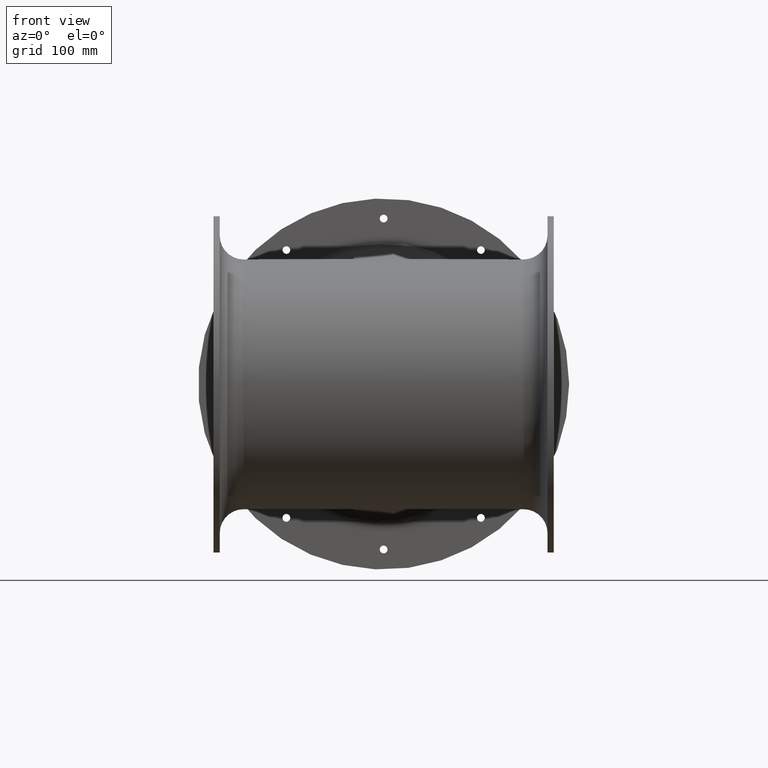
[diagram: clean part render]
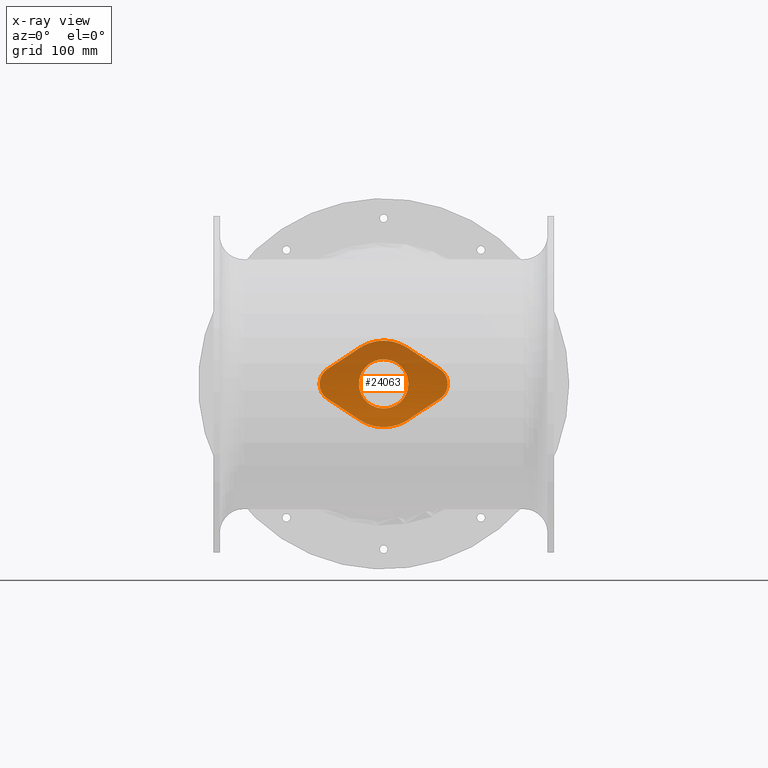
[diagram: x-ray — body ghosted, one internal face saturated and labeled with its STEP entity id]
A machine part, front view, then the same camera in x-ray: the body is ghosted and one INTERNAL B-rep face — a face not visible from any outside direction — is saturated and labeled: STEP entity #24063.
In plain terms, the highlighted cylindrical surface (partial cylindrical patch) has radius 191.2 mm, axis along (1, 0, 0).
Its self-contained STEP definition (entity closure, byte-faithful):
#485=ELLIPSE('',#25851,347.215496329722,191.199999960248);
#486=ELLIPSE('',#25852,347.215496353252,191.199999985337);
#487=ELLIPSE('',#25853,347.21549625925,191.199999888041);
#488=ELLIPSE('',#25854,347.215496300063,191.199999929978);
#4695=FACE_BOUND('',#7168,.T.);
#5639=FACE_OUTER_BOUND('',#7167,.T.);
#7167=EDGE_LOOP('',(#18792,#18793,#18794,#18795,#18796,#18797,#18798,#18799));
#7168=EDGE_LOOP('',(#18800));
#8603=B_SPLINE_CURVE_WITH_KNOTS('',3,(#63079,#63080,#63081,#63082,#63083,
#63084,#63085,#63086,#63087,#63088,#63089,#63090,#63091,#63092,#63093,#63094,
#63095,#63096,#63097,#63098,#63099,#63100,#63101,#63102,#63103,#63104),
 .UNSPECIFIED.,.F.,.F.,(4,2,2,2,2,2,2,2,2,2,2,2,4),(-15.725844214039,-15.7013195879185,
-15.1598895513449,-14.6184689818161,-14.0770484122872,-13.5356278427584,
-12.9942072732295,-12.4527867037007,-11.9113661341718,-11.369945564643,
-10.8285249951141,-10.2870949585405,-10.26257033242),.UNSPECIFIED.);
#8604=B_SPLINE_CURVE_WITH_KNOTS('',3,(#63108,#63109,#63110,#63111,#63112,
#63113,#63114,#63115,#63116,#63117,#63118,#63119,#63120,#63121,#63122),
 .UNSPECIFIED.,.F.,.F.,(4,2,2,3,2,2,4),(-3.92995720711739,-2.66477055484875,
-1.33238527742438,0.,1.33238527742438,2.66477055484876,3.92995720711741),
 .UNSPECIFIED.);
#8605=B_SPLINE_CURVE_WITH_KNOTS('',3,(#63126,#63127,#63128,#63129,#63130,
#63131,#63132,#63133,#63134,#63135,#63136,#63137,#63138,#63139,#63140,#63141,
#63142,#63143,#63144,#63145,#63146,#63147,#63148,#63149,#63150,#63151),
 .UNSPECIFIED.,.F.,.F.,(4,2,2,2,2,2,2,2,2,2,2,2,4),(1.59976548360048,1.62429010972083,
2.16572014629444,2.70714071582329,3.24856128535215,3.789981854881,4.33140242440986,
4.87282299393871,5.41424356346756,5.95566413299642,6.49708470252527,7.03851473909888,
7.06303936521923),.UNSPECIFIED.);
#8606=B_SPLINE_CURVE_WITH_KNOTS('',3,(#63155,#63156,#63157,#63158,#63159,
#63160,#63161,#63162,#63163,#63164,#63165,#63166,#63167,#63168),
 .UNSPECIFIED.,.F.,.F.,(4,2,2,2,2,2,4),(-25.2407567184165,-23.9755700661479,
-22.6431847887235,-21.3107995112991,-19.9784142338747,-18.6460289564503,
-17.3808423041817),.UNSPECIFIED.);
#8607=B_SPLINE_CURVE_WITH_KNOTS('',3,(#63171,#63172,#63173,#63174,#63175,
#63176,#63177,#63178,#63179,#63180,#63181,#63182,#63183,#63184,#63185,#63186,
#63187,#63188,#63189,#63190,#63191,#63192,#63193,#63194,#63195,#63196,#63197,
#63198,#63199,#63200,#63201,#63202,#63203,#63204,#63205,#63206,#63207,#63208,
#63209,#63210,#63211,#63212,#63213,#63214,#63215,#63216,#63217,#63218,#63219,
#63220,#63221,#63222,#63223,#63224,#63225,#63226,#63227,#63228,#63229,#63230,
#63231,#63232,#63233,#63234,#63235,#63236,#63237,#63238,#63239,#63240,#63241,
#63242,#63243),.UNSPECIFIED.,.T.,.F.,(4,3,3,3,3,3,3,3,3,3,3,3,3,3,3,3,3,
3,3,3,3,3,3,3,4),(-23.5763878531565,-21.8925300560688,-21.0505096692969,
-20.629499475911,-20.208489282525,-19.0857954334959,-17.9631015844667,-16.8404077354375,
-15.7177138864084,-15.4370404241511,-14.5950200373792,-14.0336731128646,
-13.47232618835,-12.9109792638354,-12.3496323393209,-11.2269384902917,-10.1042446412625,
-8.98155079223335,-8.70087732997605,-7.85885694320418,-6.73616309417501,
-5.05212232063126,-3.36808154708751,-1.68404077354375,0.000182976456013506),
 .UNSPECIFIED.);
#10376=VERTEX_POINT('',#63077);
#10377=VERTEX_POINT('',#63078);
#10378=VERTEX_POINT('',#63105);
#10379=VERTEX_POINT('',#63107);
#10380=VERTEX_POINT('',#63123);
#10381=VERTEX_POINT('',#63125);
#10382=VERTEX_POINT('',#63152);
#10383=VERTEX_POINT('',#63154);
#10384=VERTEX_POINT('',#63170);
#13343=EDGE_CURVE('',#10376,#10377,#8603,.T.);
#13344=EDGE_CURVE('',#10378,#10376,#485,.T.);
#13345=EDGE_CURVE('',#10379,#10378,#8604,.T.);
#13346=EDGE_CURVE('',#10380,#10379,#486,.T.);
#13347=EDGE_CURVE('',#10381,#10380,#8605,.F.);
#13348=EDGE_CURVE('',#10382,#10381,#487,.T.);
#13349=EDGE_CURVE('',#10383,#10382,#8606,.T.);
#13350=EDGE_CURVE('',#10377,#10383,#488,.T.);
#13351=EDGE_CURVE('',#10384,#10384,#8607,.T.);
#18792=ORIENTED_EDGE('',*,*,#13343,.F.);
#18793=ORIENTED_EDGE('',*,*,#13344,.F.);
#18794=ORIENTED_EDGE('',*,*,#13345,.F.);
#18795=ORIENTED_EDGE('',*,*,#13346,.F.);
#18796=ORIENTED_EDGE('',*,*,#13347,.F.);
#18797=ORIENTED_EDGE('',*,*,#13348,.F.);
#18798=ORIENTED_EDGE('',*,*,#13349,.F.);
#18799=ORIENTED_EDGE('',*,*,#13350,.F.);
#18800=ORIENTED_EDGE('',*,*,#13351,.F.);
#21759=CYLINDRICAL_SURFACE('',#25850,191.199999999999);
#24063=ADVANCED_FACE('',(#5639,#4695),#21759,.T.);
#25850=AXIS2_PLACEMENT_3D('',#63076,#29205,#29206);
#25851=AXIS2_PLACEMENT_3D('',#63106,#29207,#29208);
#25852=AXIS2_PLACEMENT_3D('',#63124,#29209,#29210);
#25853=AXIS2_PLACEMENT_3D('',#63153,#29211,#29212);
#25854=AXIS2_PLACEMENT_3D('',#63169,#29213,#29214);
#29205=DIRECTION('center_axis',(1.,0.,0.));
#29206=DIRECTION('ref_axis',(0.,0.930572058664082,-0.366108786610882));
#29207=DIRECTION('center_axis',(0.550666666666718,-4.4379757284214E-13,
-0.834725237561538));
#29208=DIRECTION('ref_axis',(0.834725237561538,3.39504704167079E-11,0.550666666666718));
#29209=DIRECTION('center_axis',(-0.550666666666669,2.67347935446907E-14,
-0.83472523756157));
#29210=DIRECTION('ref_axis',(0.83472523756157,-1.62898484917883E-11,-0.550666666666669));
#29211=DIRECTION('center_axis',(-0.550666666666684,-1.14959612242236E-13,
0.83472523756156));
#29212=DIRECTION('ref_axis',(0.83472523756156,-1.00790316491045E-10,0.550666666666684));
#29213=DIRECTION('center_axis',(0.55066666666672,-4.59838448968886E-13,
0.834725237561536));
#29214=DIRECTION('ref_axis',(0.834725237561536,6.26675437728595E-11,-0.55066666666672));
#63076=CARTESIAN_POINT('Origin',(-619.549949718851,751.291495690655,286.088403940124));
#63077=CARTESIAN_POINT('',(-528.745816385518,940.984723377932,262.131789622107));
#63078=CARTESIAN_POINT('',(-528.745816385518,940.984723377932,310.045018258141));
#63079=CARTESIAN_POINT('Ctrl Pts',(-528.745816385518,940.984723377933,262.131789622107));
#63080=CARTESIAN_POINT('Ctrl Pts',(-528.674372853884,940.99067563629,262.178920785332));
#63081=CARTESIAN_POINT('Ctrl Pts',(-528.603184713787,940.996646699136,262.226342154422));
#63082=CARTESIAN_POINT('Ctrl Pts',(-526.966369835934,941.134846274242,263.327274724714));
#63083=CARTESIAN_POINT('Ctrl Pts',(-525.528528224044,941.275609660289,264.521896194823));
#63084=CARTESIAN_POINT('Ctrl Pts',(-522.983464224296,941.547277305078,267.066960194571));
#63085=CARTESIAN_POINT('Ctrl Pts',(-521.788845173319,941.687729675548,268.504791525917));
#63086=CARTESIAN_POINT('Ctrl Pts',(-519.682383828381,941.951019105515,271.636571102253));
#63087=CARTESIAN_POINT('Ctrl Pts',(-518.770403785522,942.073592732812,273.330448835527));
#63088=CARTESIAN_POINT('Ctrl Pts',(-517.3050804437,942.27711416174,276.865199116299));
#63089=CARTESIAN_POINT('Ctrl Pts',(-516.75057145707,942.358044144797,278.708938516081));
#63090=CARTESIAN_POINT('Ctrl Pts',(-516.022923539311,942.465269334124,282.418156122966));
#63091=CARTESIAN_POINT('Ctrl Pts',(-515.849949718851,942.491495690654,284.283668708361));
#63092=CARTESIAN_POINT('Ctrl Pts',(-515.849949718851,942.491495690654,287.893139171887));
#63093=CARTESIAN_POINT('Ctrl Pts',(-516.022923539311,942.465269334124,289.758651757282));
#63094=CARTESIAN_POINT('Ctrl Pts',(-516.750571457069,942.358044144797,293.467869364167));
#63095=CARTESIAN_POINT('Ctrl Pts',(-517.3050804437,942.27711416174,295.311608763949));
#63096=CARTESIAN_POINT('Ctrl Pts',(-518.770403785522,942.073592732812,298.846359044721));
#63097=CARTESIAN_POINT('Ctrl Pts',(-519.682383828381,941.951019105515,300.540236777995));
#63098=CARTESIAN_POINT('Ctrl Pts',(-521.788845173319,941.687729675548,303.672016354331));
#63099=CARTESIAN_POINT('Ctrl Pts',(-522.983464224296,941.547277305078,305.109847685677));
#63100=CARTESIAN_POINT('Ctrl Pts',(-525.528528224044,941.275609660289,307.654911685425));
#63101=CARTESIAN_POINT('Ctrl Pts',(-526.966369835934,941.134846274241,308.849533155534));
#63102=CARTESIAN_POINT('Ctrl Pts',(-528.603184713787,940.996646699136,309.950465725827));
#63103=CARTESIAN_POINT('Ctrl Pts',(-528.674372853883,940.99067563629,309.997887094916));
#63104=CARTESIAN_POINT('Ctrl Pts',(-528.745816385518,940.984723377933,310.045018258141));
#63105=CARTESIAN_POINT('',(-581.003283052184,933.344470154437,227.657637310814));
#63106=CARTESIAN_POINT('Origin',(-492.431305663779,751.291495730399,286.088403931834));
#63107=CARTESIAN_POINT('',(-658.096616385518,933.344470154437,227.657637310814));
#63108=CARTESIAN_POINT('Ctrl Pts',(-658.096616385518,933.344470154438,227.657637310814));
#63109=CARTESIAN_POINT('Ctrl Pts',(-654.457465412631,932.573940917469,225.256896269857));
#63110=CARTESIAN_POINT('Ctrl Pts',(-650.53958882099,931.850251415593,223.16587950409));
#63111=CARTESIAN_POINT('Ctrl Pts',(-642.147800208941,930.595676390174,219.672472260778));
#63112=CARTESIAN_POINT('Ctrl Pts',(-637.64743115765,930.077609117541,218.310179651667));
#63113=CARTESIAN_POINT('Ctrl Pts',(-628.569231234435,929.38782626056,216.51787080109));
#63114=CARTESIAN_POINT('Ctrl Pts',(-623.991233976932,929.216873307227,216.088403940124));
#63115=CARTESIAN_POINT('Ctrl Pts',(-619.549949718851,929.216873307227,216.088403940124));
#63116=CARTESIAN_POINT('Ctrl Pts',(-615.10866546077,929.216873307227,216.088403940124));
#63117=CARTESIAN_POINT('Ctrl Pts',(-610.530668203267,929.38782626056,216.51787080109));
#63118=CARTESIAN_POINT('Ctrl Pts',(-601.452468280052,930.077609117541,218.310179651667));
#63119=CARTESIAN_POINT('Ctrl Pts',(-596.952099228762,930.595676390174,219.672472260778));
#63120=CARTESIAN_POINT('Ctrl Pts',(-588.560310616712,931.850251415593,223.16587950409));
#63121=CARTESIAN_POINT('Ctrl Pts',(-584.642434025071,932.573940917469,225.256896269858));
#63122=CARTESIAN_POINT('Ctrl Pts',(-581.003283052184,933.344470154438,227.657637310814));
#63123=CARTESIAN_POINT('',(-710.354083052184,940.984723377932,262.131789622107));
#63124=CARTESIAN_POINT('Origin',(-746.668593780466,751.291495705308,286.08840393604));
#63125=CARTESIAN_POINT('',(-710.354083052184,940.984723377932,310.045018258141));
#63126=CARTESIAN_POINT('Ctrl Pts',(-710.354083052184,940.984723377933,262.131789622107));
#63127=CARTESIAN_POINT('Ctrl Pts',(-710.425526583818,940.99067563629,262.178920785333));
#63128=CARTESIAN_POINT('Ctrl Pts',(-710.496714723915,940.996646699136,262.226342154422));
#63129=CARTESIAN_POINT('Ctrl Pts',(-712.133529601767,941.134846274242,263.327274724714));
#63130=CARTESIAN_POINT('Ctrl Pts',(-713.571371213658,941.275609660289,264.521896194823));
#63131=CARTESIAN_POINT('Ctrl Pts',(-716.116435213405,941.547277305078,267.066960194571));
#63132=CARTESIAN_POINT('Ctrl Pts',(-717.311054264382,941.687729675548,268.504791525917));
#63133=CARTESIAN_POINT('Ctrl Pts',(-719.41751560932,941.951019105515,271.636571102253));
#63134=CARTESIAN_POINT('Ctrl Pts',(-720.329495652179,942.073592732812,273.330448835527));
#63135=CARTESIAN_POINT('Ctrl Pts',(-721.794818994001,942.27711416174,276.865199116299));
#63136=CARTESIAN_POINT('Ctrl Pts',(-722.349327980632,942.358044144797,278.708938516081));
#63137=CARTESIAN_POINT('Ctrl Pts',(-723.07697589839,942.465269334124,282.418156122966));
#63138=CARTESIAN_POINT('Ctrl Pts',(-723.249949718851,942.491495690654,284.283668708361));
#63139=CARTESIAN_POINT('Ctrl Pts',(-723.249949718851,942.491495690654,287.893139171887));
#63140=CARTESIAN_POINT('Ctrl Pts',(-723.07697589839,942.465269334124,289.758651757282));
#63141=CARTESIAN_POINT('Ctrl Pts',(-722.349327980632,942.358044144797,293.467869364167));
#63142=CARTESIAN_POINT('Ctrl Pts',(-721.794818994001,942.27711416174,295.311608763949));
#63143=CARTESIAN_POINT('Ctrl Pts',(-720.329495652179,942.073592732812,298.846359044721));
#63144=CARTESIAN_POINT('Ctrl Pts',(-719.41751560932,941.951019105515,300.540236777995));
#63145=CARTESIAN_POINT('Ctrl Pts',(-717.311054264382,941.687729675548,303.672016354331));
#63146=CARTESIAN_POINT('Ctrl Pts',(-716.116435213405,941.547277305078,305.109847685677));
#63147=CARTESIAN_POINT('Ctrl Pts',(-713.571371213658,941.275609660289,307.654911685425));
#63148=CARTESIAN_POINT('Ctrl Pts',(-712.133529601767,941.134846274241,308.849533155534));
#63149=CARTESIAN_POINT('Ctrl Pts',(-710.496714723915,940.996646699136,309.950465725826));
#63150=CARTESIAN_POINT('Ctrl Pts',(-710.425526583818,940.99067563629,309.997887094916));
#63151=CARTESIAN_POINT('Ctrl Pts',(-710.354083052184,940.984723377933,310.045018258141));
#63152=CARTESIAN_POINT('',(-658.096616385518,933.344470154437,344.519170569434));
#63153=CARTESIAN_POINT('Origin',(-746.668593748864,751.291495802587,286.088403965022));
#63154=CARTESIAN_POINT('',(-581.003283052184,933.344470154437,344.519170569434));
#63155=CARTESIAN_POINT('Ctrl Pts',(-581.003283052184,933.344470154438,344.519170569434));
#63156=CARTESIAN_POINT('Ctrl Pts',(-584.642434025071,932.573940917469,346.91991161039));
#63157=CARTESIAN_POINT('Ctrl Pts',(-588.560310616712,931.850251415593,349.010928376157));
#63158=CARTESIAN_POINT('Ctrl Pts',(-596.952099228761,930.595676390174,352.50433561947));
#63159=CARTESIAN_POINT('Ctrl Pts',(-601.452468280052,930.077609117541,353.866628228581));
#63160=CARTESIAN_POINT('Ctrl Pts',(-610.530668203267,929.387826260561,355.658937079157));
#63161=CARTESIAN_POINT('Ctrl Pts',(-615.10866546077,929.216873307227,356.088403940124));
#63162=CARTESIAN_POINT('Ctrl Pts',(-623.991233976932,929.216873307227,356.088403940124));
#63163=CARTESIAN_POINT('Ctrl Pts',(-628.569231234435,929.387826260561,355.658937079157));
#63164=CARTESIAN_POINT('Ctrl Pts',(-637.64743115765,930.077609117541,353.866628228581));
#63165=CARTESIAN_POINT('Ctrl Pts',(-642.147800208941,930.595676390174,352.50433561947));
#63166=CARTESIAN_POINT('Ctrl Pts',(-650.53958882099,931.850251415593,349.010928376157));
#63167=CARTESIAN_POINT('Ctrl Pts',(-654.457465412631,932.573940917469,346.91991161039));
#63168=CARTESIAN_POINT('Ctrl Pts',(-658.096616385518,933.344470154438,344.519170569434));
#63169=CARTESIAN_POINT('Origin',(-492.431305674578,751.291495760659,286.088403955535));
#63170=CARTESIAN_POINT('',(-619.549949418446,938.304477786643,325.882681513228));
#63171=CARTESIAN_POINT('Ctrl Pts',(-619.549949322649,938.304477786646,325.882681513213));
#63172=CARTESIAN_POINT('Ctrl Pts',(-613.57021557744,938.304679238055,325.881734793461));
#63173=CARTESIAN_POINT('Ctrl Pts',(-607.599485197599,938.605414479758,324.531805851127));
#63174=CARTESIAN_POINT('Ctrl Pts',(-602.192584183596,939.100078930596,321.940545597293));
#63175=CARTESIAN_POINT('Ctrl Pts',(-599.488839906067,939.347438032378,320.644774680691));
#63176=CARTESIAN_POINT('Ctrl Pts',(-596.92608360593,939.640361245285,319.038047116504));
#63177=CARTESIAN_POINT('Ctrl Pts',(-594.589666070322,939.946093300627,317.183143054951));
#63178=CARTESIAN_POINT('Ctrl Pts',(-593.421457302518,940.098959328298,316.255691024175));
#63179=CARTESIAN_POINT('Ctrl Pts',(-592.309833225847,940.255050229473,315.266189506514));
#63180=CARTESIAN_POINT('Ctrl Pts',(-591.254771456942,940.411298571729,314.215617776962));
#63181=CARTESIAN_POINT('Ctrl Pts',(-590.199709688037,940.567546913986,313.16504604741));
#63182=CARTESIAN_POINT('Ctrl Pts',(-589.201210226898,940.723898802255,312.053400672597));
#63183=CARTESIAN_POINT('Ctrl Pts',(-588.26914576847,940.876081973918,310.89011040971));
#63184=CARTESIAN_POINT('Ctrl Pts',(-585.783640545995,941.28190376502,307.788003042011));
#63185=CARTESIAN_POINT('Ctrl Pts',(-583.770562009463,941.656418384477,304.318432035161));
#63186=CARTESIAN_POINT('Ctrl Pts',(-582.314929473222,941.937862199031,300.628106040016));
#63187=CARTESIAN_POINT('Ctrl Pts',(-580.859296936981,942.219306013585,296.93778004487));
#63188=CARTESIAN_POINT('Ctrl Pts',(-579.96111040103,942.406544290326,293.026597866441));
#63189=CARTESIAN_POINT('Ctrl Pts',(-579.662552402384,942.468250260683,289.069764715139));
#63190=CARTESIAN_POINT('Ctrl Pts',(-579.363994403737,942.529956231041,285.112931563837));
#63191=CARTESIAN_POINT('Ctrl Pts',(-579.665064942393,942.46594593263,281.110429428133));
#63192=CARTESIAN_POINT('Ctrl Pts',(-580.551531717593,942.286651828204,277.240221528291));
#63193=CARTESIAN_POINT('Ctrl Pts',(-581.437998492792,942.107357723777,273.37001362845));
#63194=CARTESIAN_POINT('Ctrl Pts',(-582.909861504534,941.813556713513,269.632049431243));
#63195=CARTESIAN_POINT('Ctrl Pts',(-584.913583383149,941.452503521582,266.182849420705));
#63196=CARTESIAN_POINT('Ctrl Pts',(-585.414513852803,941.3622402236,265.32054941807));
#63197=CARTESIAN_POINT('Ctrl Pts',(-585.948685501637,941.267914123063,264.476282906251));
#63198=CARTESIAN_POINT('Ctrl Pts',(-586.511791012722,941.1709262039,263.655350916397));
#63199=CARTESIAN_POINT('Ctrl Pts',(-588.201107545976,940.879962446412,261.192554946835));
#63200=CARTESIAN_POINT('Ctrl Pts',(-590.150828839492,940.565322281222,258.939747216278));
#63201=CARTESIAN_POINT('Ctrl Pts',(-592.345758527478,940.25297691653,256.916523422702));
#63202=CARTESIAN_POINT('Ctrl Pts',(-593.809044986136,940.044746673402,255.567707560318));
#63203=CARTESIAN_POINT('Ctrl Pts',(-595.381312953447,939.837393888962,254.320949523701));
#63204=CARTESIAN_POINT('Ctrl Pts',(-597.028416654881,939.642283799884,253.203443568673));
#63205=CARTESIAN_POINT('Ctrl Pts',(-598.675520356314,939.447173710806,252.085937613645));
#63206=CARTESIAN_POINT('Ctrl Pts',(-600.397459791871,939.264506346708,251.097646996873));
#63207=CARTESIAN_POINT('Ctrl Pts',(-602.193905413154,939.100422838224,250.238063862535));
#63208=CARTESIAN_POINT('Ctrl Pts',(-603.990351034437,938.93633932974,249.378480728197));
#63209=CARTESIAN_POINT('Ctrl Pts',(-605.861302841446,938.790789924541,248.647617284723));
#63210=CARTESIAN_POINT('Ctrl Pts',(-607.7712716265,938.671816158623,248.06136748813));
#63211=CARTESIAN_POINT('Ctrl Pts',(-609.681240411553,938.552842392705,247.475117691537));
#63212=CARTESIAN_POINT('Ctrl Pts',(-611.630226174651,938.460515850686,247.033464540314));
#63213=CARTESIAN_POINT('Ctrl Pts',(-613.601878979631,938.398638753303,246.739236033629));
#63214=CARTESIAN_POINT('Ctrl Pts',(-617.54518458959,938.274884558535,246.150779020258));
#63215=CARTESIAN_POINT('Ctrl Pts',(-621.579158367077,938.275061286031,246.151572069456));
#63216=CARTESIAN_POINT('Ctrl Pts',(-625.5215089856,938.399274920199,246.742261158551));
#63217=CARTESIAN_POINT('Ctrl Pts',(-629.463859604123,938.523488554366,247.332950247647));
#63218=CARTESIAN_POINT('Ctrl Pts',(-633.314587063682,938.77129138827,248.513615372118));
#63219=CARTESIAN_POINT('Ctrl Pts',(-636.915343271746,939.10130170366,250.242668275235));
#63220=CARTESIAN_POINT('Ctrl Pts',(-640.51609947981,939.43131201905,251.971721178353));
#63221=CARTESIAN_POINT('Ctrl Pts',(-643.866884436379,939.841607139594,254.249546423833));
#63222=CARTESIAN_POINT('Ctrl Pts',(-646.781159719003,940.256784945718,256.941200699502));
#63223=CARTESIAN_POINT('Ctrl Pts',(-647.509728539659,940.360579397249,257.614114268419));
#63224=CARTESIAN_POINT('Ctrl Pts',(-648.211015505694,940.464691295963,258.312890135643));
#63225=CARTESIAN_POINT('Ctrl Pts',(-648.886468538285,940.568374454165,259.038391638035));
#63226=CARTESIAN_POINT('Ctrl Pts',(-650.912827636058,940.879423928772,261.214896145212));
#63227=CARTESIAN_POINT('Ctrl Pts',(-652.706681332837,941.18587376076,263.632052726513));
#63228=CARTESIAN_POINT('Ctrl Pts',(-654.203593657902,941.455425952724,266.210787702691));
#63229=CARTESIAN_POINT('Ctrl Pts',(-656.199476757988,941.814828875342,269.649101004261));
#63230=CARTESIAN_POINT('Ctrl Pts',(-657.667464086138,942.107521027622,273.374631199928));
#63231=CARTESIAN_POINT('Ctrl Pts',(-658.549997054841,942.286536171185,277.237725331096));
#63232=CARTESIAN_POINT('Ctrl Pts',(-659.873796507896,942.555058886529,283.032366527847));
#63233=CARTESIAN_POINT('Ctrl Pts',(-659.880323652194,942.555577958998,289.137320378471));
#63234=CARTESIAN_POINT('Ctrl Pts',(-658.547836650083,942.286248386484,294.945290676383));
#63235=CARTESIAN_POINT('Ctrl Pts',(-657.215349647973,942.016918813969,300.753260974294));
#63236=CARTESIAN_POINT('Ctrl Pts',(-654.543848499454,941.481871830629,306.264787195298));
#63237=CARTESIAN_POINT('Ctrl Pts',(-650.81043635498,940.872406286262,310.918191247713));
#63238=CARTESIAN_POINT('Ctrl Pts',(-647.077024210505,940.262940741895,315.571595300127));
#63239=CARTESIAN_POINT('Ctrl Pts',(-642.281701070075,939.591149826484,319.368517389326));
#63240=CARTESIAN_POINT('Ctrl Pts',(-636.895516060023,939.099033764725,321.946020182095));
#63241=CARTESIAN_POINT('Ctrl Pts',(-631.508745823615,938.60686423297,324.523803028846));
#63242=CARTESIAN_POINT('Ctrl Pts',(-625.530982643737,938.304276291457,325.883628438716));
#63243=CARTESIAN_POINT('Ctrl Pts',(-619.549949322649,938.304477786646,325.882681513213));